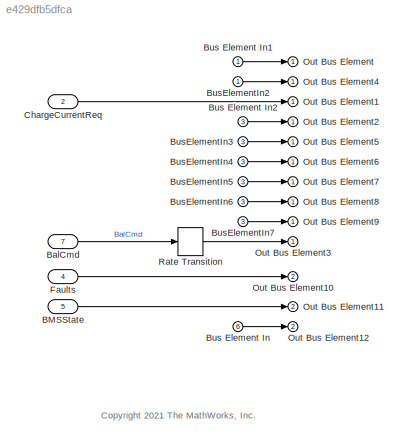
MODEL slx_e429dfb5dfca
KIND model
CONFIG AbsTol = auto
CONFIG EnableMultiTasking = off
CONFIG FixedStep = auto
CONFIG MaxStep = auto
CONFIG MinStep = auto
CONFIG RelTol = 1e-3
CONFIG SampleTimeConstraint = Unconstrained
CONFIG SolverName = FixedStepDiscrete
CONFIG StartTime = 0.0
CONFIG StopTime = 10000
BLOCK [Inport] BMSState
  OutDataTypeStr = single
  Port = 5
  PortDimensions = 1
  SampleTime = [0.10000000000000001,0]
  SamplingMode = Sample based
  SignalType = real
BLOCK [Inport] BalCmd
  OutDataTypeStr = boolean
  Port = 7
  PortDimensions = [1 PlntBattNumCellSer]
  SampleTime = [5,0]
  SamplingMode = Sample based
  SignalType = real
BLOCK [Inport] Bus Element In
  Port = 6
BLOCK [Inport] Bus Element In1
BLOCK [Inport] Bus Element In2
  Port = 3
BLOCK [Inport] BusElementIn2
BLOCK [Inport] BusElementIn3
  Port = 3
BLOCK [Inport] BusElementIn4
  Port = 3
BLOCK [Inport] BusElementIn5
  Port = 3
BLOCK [Inport] BusElementIn6
  Port = 3
BLOCK [Inport] BusElementIn7
  Port = 3
BLOCK [Inport] ChargeCurrentReq
  OutDataTypeStr = single
  Port = 2
  PortDimensions = 1
  SampleTime = [0.10000000000000001,0]
  SamplingMode = Sample based
  SignalType = real
BLOCK [Inport] Faults
  OutDataTypeStr = boolean
  Port = 4
BLOCK [Outport] Out Bus Element
BLOCK [Outport] Out Bus Element1
BLOCK [Outport] Out Bus Element10
  Port = 2
BLOCK [Outport] Out Bus Element11
  Port = 2
BLOCK [Outport] Out Bus Element12
  Port = 2
BLOCK [Outport] Out Bus Element2
BLOCK [Outport] Out Bus Element3
BLOCK [Outport] Out Bus Element4
BLOCK [Outport] Out Bus Element5
BLOCK [Outport] Out Bus Element6
BLOCK [Outport] Out Bus Element7
BLOCK [Outport] Out Bus Element8
BLOCK [Outport] Out Bus Element9
BLOCK [RateTransition] Rate Transition
  Deterministic = off
  Integrity = off
ANNOTATION (root): <copyright redacted>
LINE BMSState:1 -> Out Bus Element11:1
LINE BalCmd:1 -> Rate Transition:1
LINE Bus Element In1:1 -> Out Bus Element:1
LINE Bus Element In2:1 -> Out Bus Element2:1
LINE Bus Element In:1 -> Out Bus Element12:1
LINE BusElementIn2:1 -> Out Bus Element4:1
LINE BusElementIn3:1 -> Out Bus Element5:1
LINE BusElementIn4:1 -> Out Bus Element6:1
LINE BusElementIn5:1 -> Out Bus Element7:1
LINE BusElementIn6:1 -> Out Bus Element8:1
LINE BusElementIn7:1 -> Out Bus Element9:1
LINE ChargeCurrentReq:1 -> Out Bus Element1:1
LINE Faults:1 -> Out Bus Element10:1
LINE Rate Transition:1 -> Out Bus Element3:1
